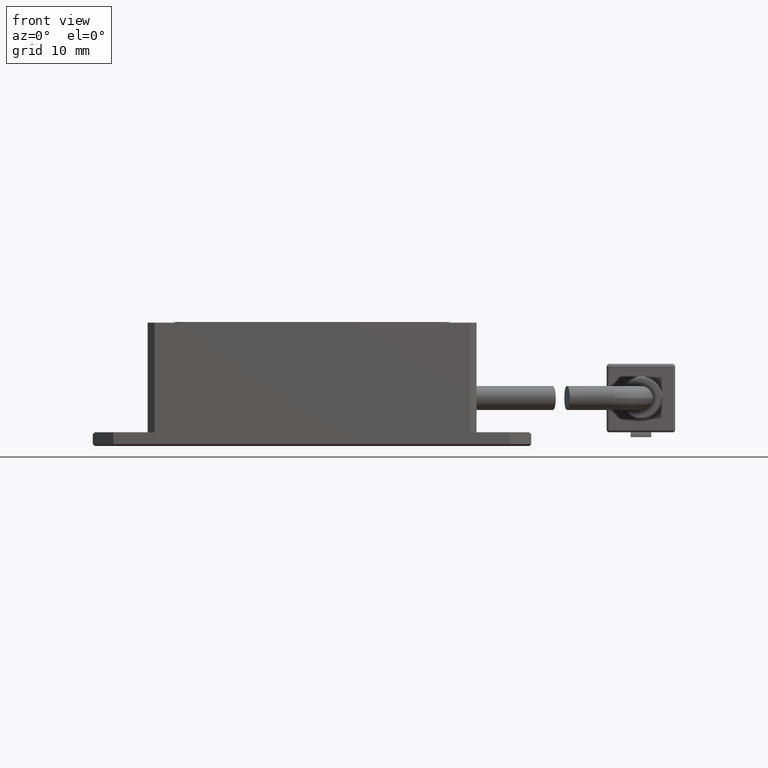
[diagram: clean part render]
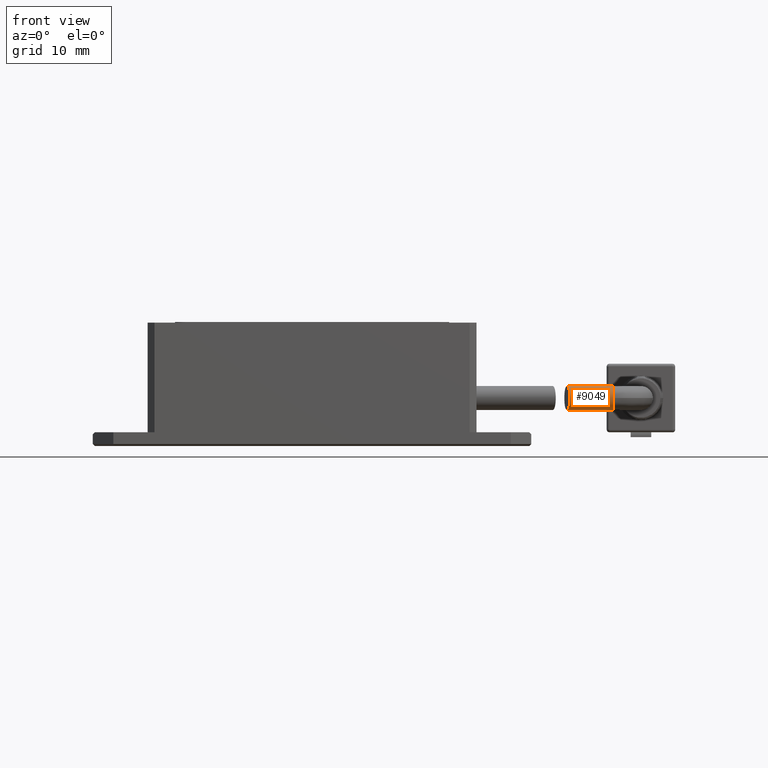
[diagram: same view with one face highlighted and labeled with its STEP entity id]
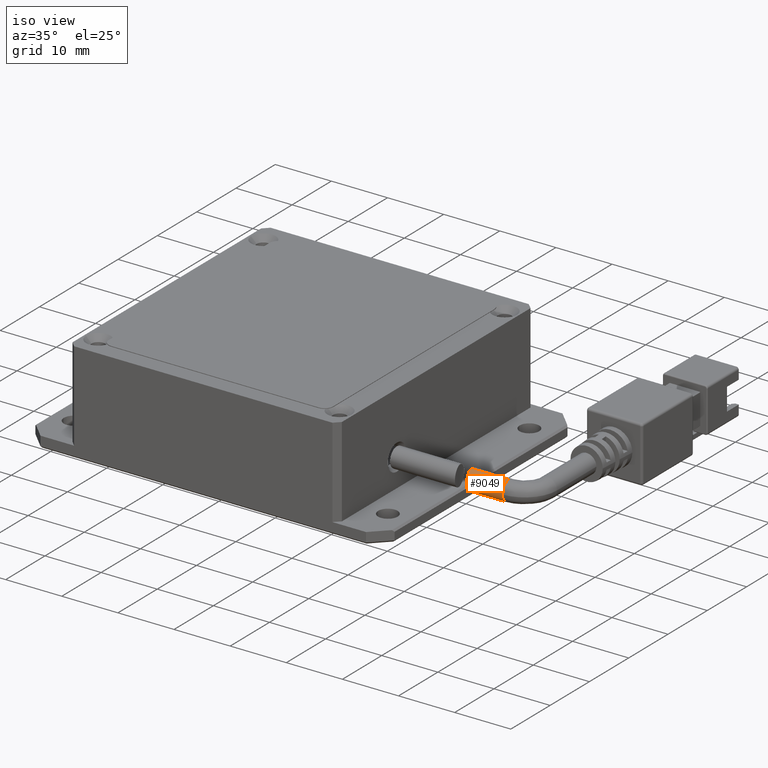
[diagram: same view with one face highlighted and labeled with its STEP entity id]
A machine part, front view. The second image highlights one B-rep face of the part: STEP entity #9049.
A second angle (iso view) of the same face is appended — the face is thin or edge-on in the first view.
In plain terms, the highlighted cylindrical surface (edge-blend (fillet) strip) has radius 1.75 mm, axis along (-1, -0, 0).
Its self-contained STEP definition (entity closure, byte-faithful):
#307 = VERTEX_POINT ( 'NONE', #20543 ) ;
#380 = DIRECTION ( 'NONE',  ( -1.000000000000000000, -3.081487911019577400E-033, 2.465190328815661900E-031 ) ) ;
#457 = CARTESIAN_POINT ( 'NONE',  ( 36.35481340144743000, -7.934577995787636300, 6.739034132827344900 ) ) ;
#533 = CARTESIAN_POINT ( 'NONE',  ( 36.70112805218535400, -9.459172455805340700, 4.886288962178742400 ) ) ;
#609 = CARTESIAN_POINT ( 'NONE',  ( 36.35519834718149200, -7.936407744894936800, 3.249999999981404200 ) ) ;
#1658 = CARTESIAN_POINT ( 'NONE',  ( 36.29873493639252000, -7.709049255440965500, 3.249999999983692200 ) ) ;
#2031 = CARTESIAN_POINT ( 'NONE',  ( 36.43603477266547900, -8.264449815368475800, 6.663411376440209600 ) ) ;
#2060 = EDGE_CURVE ( 'NONE', #2921, #8408, #20151, .T. ) ;
#2093 = CARTESIAN_POINT ( 'NONE',  ( 36.68998505395467200, -9.401864873125193300, 4.541356004195356500 ) ) ;
#2921 = VERTEX_POINT ( 'NONE', #7758 ) ;
#2974 = ORIENTED_EDGE ( 'NONE', *, *, #11205, .F. ) ;
#3378 = CARTESIAN_POINT ( 'NONE',  ( 43.09316533027873700, -7.709049255440968200, 6.749999999983693000 ) ) ;
#3524 = CARTESIAN_POINT ( 'NONE',  ( 36.29873493639251300, -7.709049255440968200, 6.749999999983693000 ) ) ;
#3598 = CARTESIAN_POINT ( 'NONE',  ( 36.51035454476707500, -8.574906181884093900, 6.525019458921152100 ) ) ;
#3672 = CARTESIAN_POINT ( 'NONE',  ( 36.66536744359300600, -9.278631369023555600, 4.217495912397449600 ) ) ;
#4131 = DIRECTION ( 'NONE',  ( -1.000000000000000000, -3.081487911019577400E-033, 2.465190328815661900E-031 ) ) ;
#5191 = CARTESIAN_POINT ( 'NONE',  ( 43.09316533027873700, -7.709049255440968200, 4.999999999983692200 ) ) ;
#5203 = CARTESIAN_POINT ( 'NONE',  ( 36.57473685743817500, -8.855268657398681900, 6.327321683407667800 ) ) ;
#5271 = CARTESIAN_POINT ( 'NONE',  ( 36.62692292340032200, -9.093953419247066300, 3.924020074607232900 ) ) ;
#5357 = CARTESIAN_POINT ( 'NONE',  ( 43.09316533027873700, -7.709049255440968200, 4.999999999983692200 ) ) ;
#6106 = CIRCLE ( 'NONE', #13394, 1.749999999999999800 ) ;
#6411 = LINE ( 'NONE', #9783, #10090 ) ;
#6723 = CARTESIAN_POINT ( 'NONE',  ( 36.32696460699750000, -7.822720306779294800, 6.749999999983693000 ) ) ;
#6783 = DIRECTION ( 'NONE',  ( 0.0000000000000000000, -1.000000000000000000, 0.0000000000000000000 ) ) ;
#6795 = CARTESIAN_POINT ( 'NONE',  ( 36.62644344897985600, -9.091698451589220300, 6.078928239375997600 ) ) ;
#6859 = EDGE_CURVE ( 'NONE', #17230, #15426, #6411, .T. ) ;
#6862 = CARTESIAN_POINT ( 'NONE',  ( 36.57489728019819400, -8.855971050603839600, 3.673177228577402300 ) ) ;
#6891 = EDGE_CURVE ( 'NONE', #307, #2921, #17102, .T. ) ;
#6947 = DIRECTION ( 'NONE',  ( 0.0000000000000000000, -1.000000000000000000, 0.0000000000000000000 ) ) ;
#6992 = CARTESIAN_POINT ( 'NONE',  ( 43.09316533027873700, -7.709049255440968200, 3.249999999983692200 ) ) ;
#7463 = VECTOR ( 'NONE', #8587, 1000.000000000000000 ) ;
#7732 = ORIENTED_EDGE ( 'NONE', *, *, #6859, .T. ) ;
#7758 = CARTESIAN_POINT ( 'NONE',  ( 43.09316533027873700, -7.709049255440968200, 3.249999999983691700 ) ) ;
#7997 = CYLINDRICAL_SURFACE ( 'NONE', #11031, 1.749999999999999800 ) ;
#8378 = CARTESIAN_POINT ( 'NONE',  ( 36.66510303361813100, -9.277332907591310000, 5.785021489497277800 ) ) ;
#8408 = VERTEX_POINT ( 'NONE', #1658 ) ;
#8451 = CARTESIAN_POINT ( 'NONE',  ( 36.51096139839745500, -8.577491579656221900, 3.476452115255872100 ) ) ;
#8587 = DIRECTION ( 'NONE',  ( -1.000000000000000000, -3.081487911019577400E-033, 2.465190328815661900E-031 ) ) ;
#9049 = ADVANCED_FACE ( 'NONE', ( #13653 ), #7997, .T. ) ;
#9783 = CARTESIAN_POINT ( 'NONE',  ( 43.09316533027873700, -7.709049255440968200, 6.749999999983692200 ) ) ;
#9938 = CARTESIAN_POINT ( 'NONE',  ( 36.70105615985126900, -9.458799823648430300, 5.233063543565339900 ) ) ;
#10011 = CARTESIAN_POINT ( 'NONE',  ( 36.41099717387239600, -8.160445353205634700, 3.294058344507183800 ) ) ;
#10090 = VECTOR ( 'NONE', #380, 1000.000000000000000 ) ;
#11031 = AXIS2_PLACEMENT_3D ( 'NONE', #15101, #4131, #12025 ) ;
#11205 = EDGE_CURVE ( 'NONE', #17230, #307, #6106, .T. ) ;
#11454 = CARTESIAN_POINT ( 'NONE',  ( 36.40922586468786200, -8.154933570343121800, 6.695962884495570800 ) ) ;
#11525 = CARTESIAN_POINT ( 'NONE',  ( 36.69891087779547700, -9.447617369532940400, 4.769002287850002000 ) ) ;
#11593 = CARTESIAN_POINT ( 'NONE',  ( 36.29873493639252000, -7.709049255440965500, 3.249999999983692200 ) ) ;
#12025 = DIRECTION ( 'NONE',  ( 0.0000000000000000000, 0.0000000000000000000, 1.000000000000000000 ) ) ;
#12599 = ORIENTED_EDGE ( 'NONE', *, *, #18892, .T. ) ;
#13033 = CARTESIAN_POINT ( 'NONE',  ( 36.48669719142984000, -8.474858429804985600, 6.577638582724575600 ) ) ;
#13102 = CARTESIAN_POINT ( 'NONE',  ( 36.68334288890539300, -9.368028212618288100, 4.431062852303552000 ) ) ;
#13373 = EDGE_LOOP ( 'NONE', ( #13586, #17652, #2974, #7732, #12599 ) ) ;
#13394 = AXIS2_PLACEMENT_3D ( 'NONE', #5357, #16443, #6947 ) ;
#13586 = ORIENTED_EDGE ( 'NONE', *, *, #2060, .F. ) ;
#13653 = FACE_OUTER_BOUND ( 'NONE', #13373, .T. ) ;
#14661 = CARTESIAN_POINT ( 'NONE',  ( 36.55428933866514300, -8.764712938368711900, 6.400345227331171400 ) ) ;
#14729 = CARTESIAN_POINT ( 'NONE',  ( 36.65395184317484500, -9.222707067984238400, 4.114261681253314200 ) ) ;
#14798 = AXIS2_PLACEMENT_3D ( 'NONE', #5191, #16271, #6783 ) ;
#15101 = CARTESIAN_POINT ( 'NONE',  ( 43.09316533027873700, -7.709049255440968200, 4.999999999983692200 ) ) ;
#15426 = VERTEX_POINT ( 'NONE', #3524 ) ;
#16271 = DIRECTION ( 'NONE',  ( 1.000000000000000000, 1.836970198721029700E-016, -2.588449845256445000E-031 ) ) ;
#16280 = CARTESIAN_POINT ( 'NONE',  ( 36.61072348322603200, -9.018396758892219400, 6.166709425641052200 ) ) ;
#16355 = CARTESIAN_POINT ( 'NONE',  ( 36.61122129304826000, -9.020678600759982400, 3.835733393299506100 ) ) ;
#16443 = DIRECTION ( 'NONE',  ( 1.000000000000000000, 1.836970198721029700E-016, -2.588449845256445000E-031 ) ) ;
#17102 = CIRCLE ( 'NONE', #14798, 1.749999999999999800 ) ;
#17230 = VERTEX_POINT ( 'NONE', #3378 ) ;
#17652 = ORIENTED_EDGE ( 'NONE', *, *, #6891, .F. ) ;
#17806 = CARTESIAN_POINT ( 'NONE',  ( 36.29873493639251300, -7.709049255440968200, 6.749999999983693000 ) ) ;
#17881 = CARTESIAN_POINT ( 'NONE',  ( 36.65367317165702600, -9.221351366061748300, 5.888114447326786100 ) ) ;
#17953 = CARTESIAN_POINT ( 'NONE',  ( 36.55482632307745700, -8.767070100070641900, 3.601435693319132300 ) ) ;
#18892 = EDGE_CURVE ( 'NONE', #15426, #8408, #19483, .T. ) ;
#19473 = CARTESIAN_POINT ( 'NONE',  ( 36.69207037125334400, -9.411400058143074800, 5.466466670754557300 ) ) ;
#19483 = B_SPLINE_CURVE_WITH_KNOTS ( 'NONE', 3,
 ( #17806, #6723, #457, #11454, #2031, #13033, #3598, #14661, #5203, #16280, #6795, #17881, #8378, #19473, #9938, #533, #11525, #2093, #13102, #3672, #14729, #5271, #16355, #6862, #17953, #8451, #19547, #10011, #609, #11593 ),
 .UNSPECIFIED., .F., .F.,
 ( 4, 2, 2, 2, 2, 2, 2, 2, 2, 2, 2, 2, 2, 2, 4 ),
 ( 0.0000000000000000000, 0.0003464661066151886600, 0.0006929322132303773100, 0.001039398319845566000, 0.001385864426460754600, 0.001732330533075943400, 0.002078796639691132000, 0.002771728852921508800, 0.003118194959536698300, 0.003464661066151887700, 0.003811127172767077600, 0.004157593279382267500, 0.004504059385997457400, 0.004850525492612647400, 0.005543457705843021100 ),
 .UNSPECIFIED. ) ;
#19547 = CARTESIAN_POINT ( 'NONE',  ( 36.48686865157407800, -8.475580372983222000, 3.422722634368738200 ) ) ;
#20151 = LINE ( 'NONE', #6992, #7463 ) ;
#20543 = CARTESIAN_POINT ( 'NONE',  ( 43.09316533027873700, -9.459049255440968200, 4.999999999983692200 ) ) ;